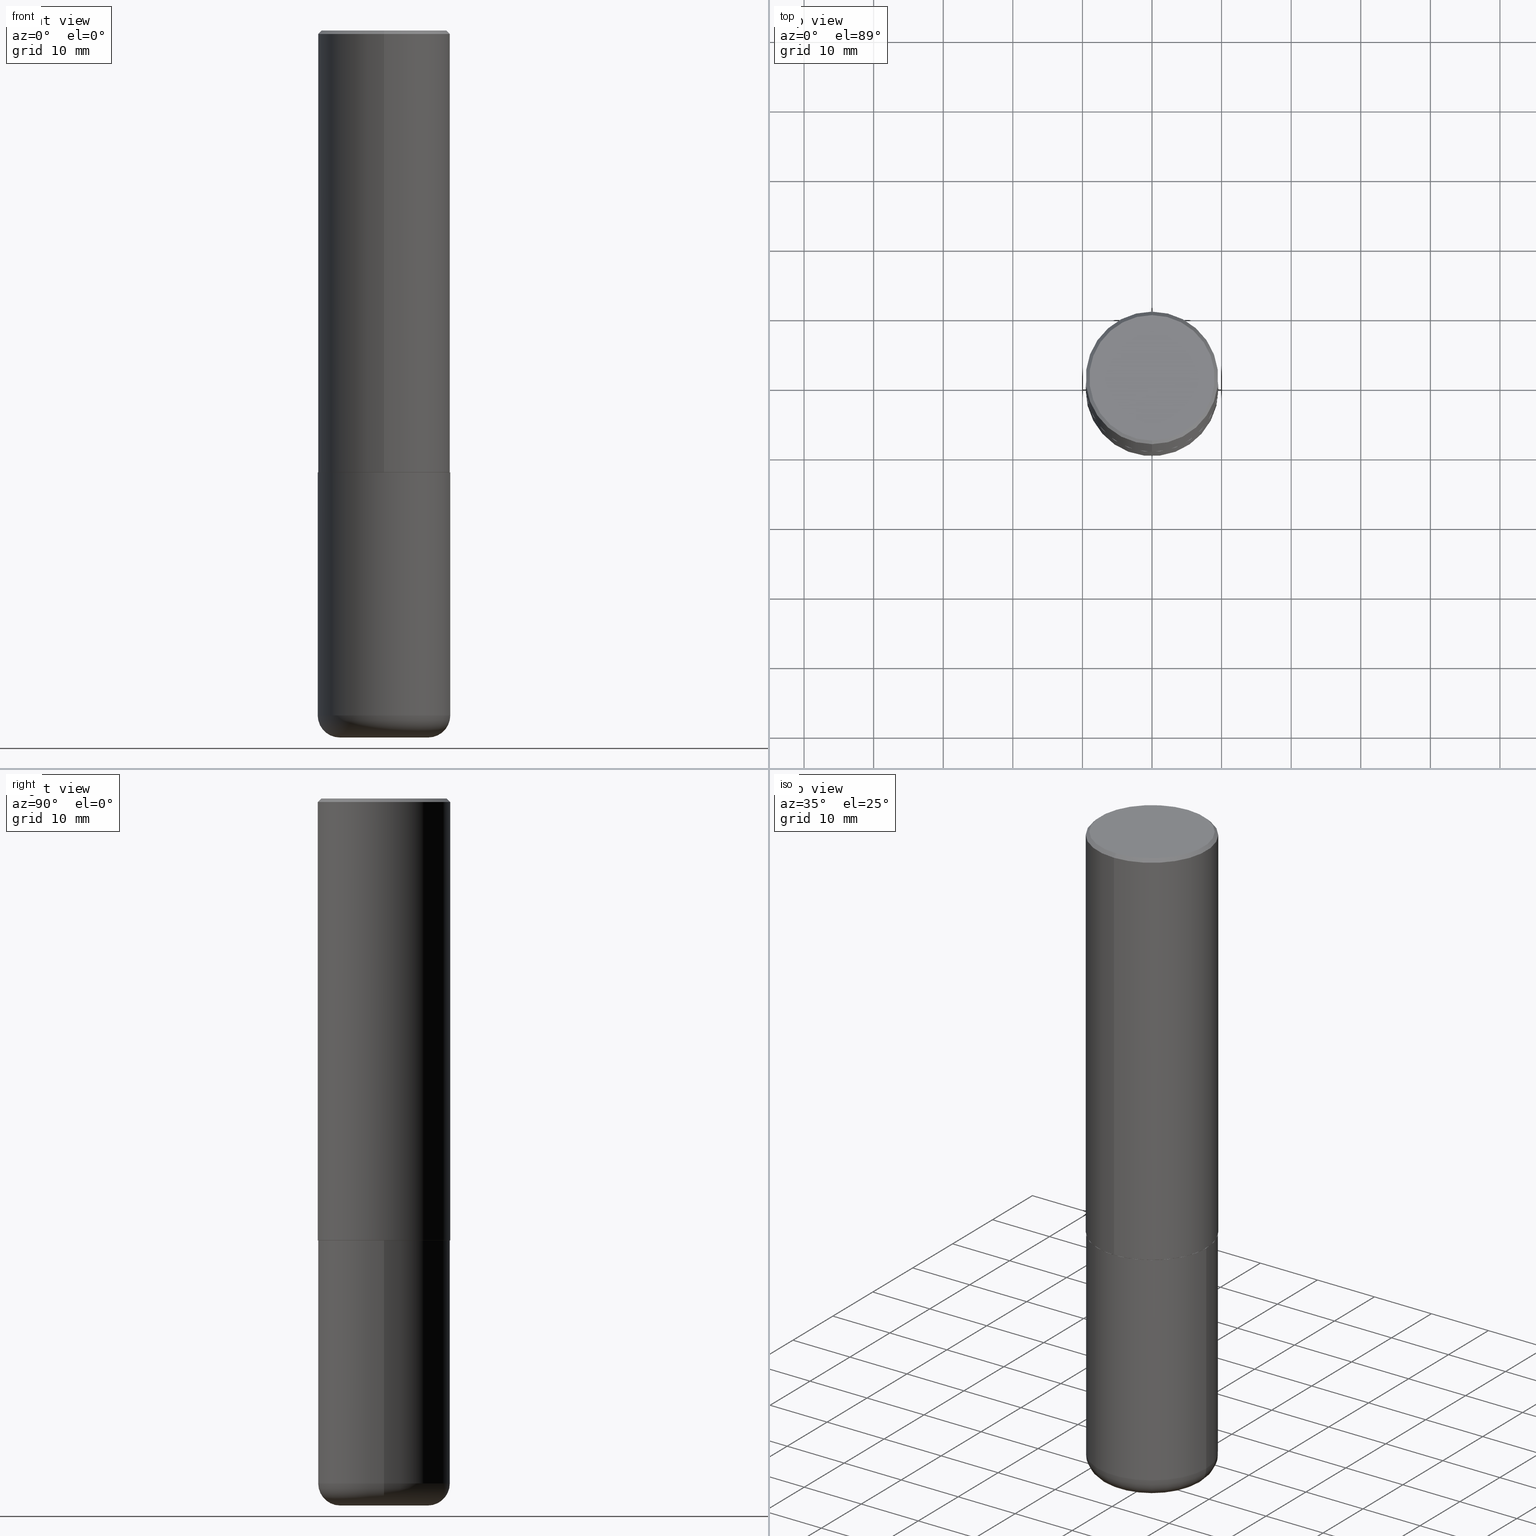
[diagram: canonical four-view strip — front | top / right | iso, engineering-drawing reading convention]
A machine part, canonical four-view strip (front | top / right | iso — engineering-drawing reading convention). The complete STEP part file that produces these views, byte-faithful:
ISO-10303-21;
HEADER;
FILE_DESCRIPTION (( 'STEP AP203' ),
    '1' );
FILE_NAME ('36715.STEP',
    '2024-03-01T17:30:03',
    ( '' ),
    ( '' ),
    'SwSTEP 2.0',
    'SolidWorks 2023',
    '' );
FILE_SCHEMA (( 'CONFIG_CONTROL_DESIGN' ));
ENDSEC;

DATA;
#1 = AXIS2_PLACEMENT_3D ( 'NONE', #44, #309, #139 ) ;
#2 = AXIS2_PLACEMENT_3D ( 'NONE', #43, #207, #336 ) ;
#3 = PERSON_AND_ORGANIZATION ( #70, #125 ) ;
#4 = ORIENTED_EDGE ( 'NONE', *, *, #22, .T. ) ;
#5 = ADVANCED_FACE ( 'NONE', ( #363 ), #9, .F. ) ;
#6 = CIRCLE ( 'NONE', #286, 0.3750000000000000555 ) ;
#7 = DIRECTION ( 'NONE',  ( -1.000000000000000000, 6.982962677686265922E-15, -4.876176775795935793E-29 ) ) ;
#8 = ORIENTED_EDGE ( 'NONE', *, *, #229, .T. ) ;
#9 = PLANE ( 'NONE',  #380 ) ;
#10 = CIRCLE ( 'NONE', #314, 0.2500000000000000555 ) ;
#11 = LOCAL_TIME ( 12, 30, 3.000000000000000000, #126 ) ;
#12 = CARTESIAN_POINT ( 'NONE',  ( 2.664535259100376486E-15, 0.3750000000000001665, -1.309801855808293473E-15 ) ) ;
#13 = DIRECTION ( 'NONE',  ( -2.444544534276841438E-29, 3.492804948822114088E-15, 1.000000000000000000 ) ) ;
#14 =( LENGTH_UNIT ( ) NAMED_UNIT ( * ) SI_UNIT ( $, .METRE. ) );
#15 = DIRECTION ( 'NONE',  ( 1.000000000000000000, -6.982962677686265922E-15, 4.876176775795935793E-29 ) ) ;
#16 =( NAMED_UNIT ( * ) SI_UNIT ( $, .STERADIAN. ) SOLID_ANGLE_UNIT ( ) );
#17 = LINE ( 'NONE', #276, #250 ) ;
#18 = LOCAL_TIME ( 12, 30, 3.000000000000000000, #258 ) ;
#19 = DIRECTION ( 'NONE',  ( -6.982962677686266711E-15, -1.000000000000000000, 3.492804948822114482E-15 ) ) ;
#20 = ADVANCED_FACE ( 'NONE', ( #72 ), #410, .T. ) ;
#21 = DIRECTION ( 'NONE',  ( 1.000000000000000000, -6.982962677686269077E-15, 0.000000000000000000 ) ) ;
#22 = EDGE_CURVE ( 'NONE', #69, #24, #367, .T. ) ;
#23 = CALENDAR_DATE ( 2024, 1, 3 ) ;
#24 = VERTEX_POINT ( 'NONE', #239 ) ;
#25 = AXIS2_PLACEMENT_3D ( 'NONE', #241, #337, #377 ) ;
#26 = CC_DESIGN_PERSON_AND_ORGANIZATION_ASSIGNMENT ( #317, #96, ( #164 ) ) ;
#27 = AXIS2_PLACEMENT_3D ( 'NONE', #382, #353, #414 ) ;
#28 = PERSON_AND_ORGANIZATION ( #70, #125 ) ;
#29 = AXIS2_PLACEMENT_3D ( 'NONE', #327, #360, #37 ) ;
#30 = CARTESIAN_POINT ( 'NONE',  ( -2.572686749164323547E-15, -0.3750000000000001110, -0.01999999999999877570 ) ) ;
#31 = ORIENTED_EDGE ( 'NONE', *, *, #220, .T. ) ;
#32 = DIRECTION ( 'NONE',  ( 1.000000000000000000, -6.982962677686265922E-15, 0.000000000000000000 ) ) ;
#33 = EDGE_LOOP ( 'NONE', ( #131, #293, #194, #222 ) ) ;
#34 = ADVANCED_FACE ( 'NONE', ( #394 ), #52, .T. ) ;
#35 = ORIENTED_EDGE ( 'NONE', *, *, #245, .T. ) ;
#36 = APPROVAL ( #179, 'UNSPECIFIED' ) ;
#37 = DIRECTION ( 'NONE',  ( -6.982962677686266711E-15, -1.000000000000000000, 3.492804948822114482E-15 ) ) ;
#38 = VECTOR ( 'NONE', #128, 39.37007874015748143 ) ;
#39 = EDGE_LOOP ( 'NONE', ( #221, #161, #237, #151 ) ) ;
#40 = LOCAL_TIME ( 12, 30, 3.000000000000000000, #162 ) ;
#41 = ORIENTED_EDGE ( 'NONE', *, *, #401, .T. ) ;
#42 = VERTEX_POINT ( 'NONE', #366 ) ;
#43 = CARTESIAN_POINT ( 'NONE',  ( 9.476191623967404313E-29, -1.352949018801718908E-14, -3.875000000000000000 ) ) ;
#44 = CARTESIAN_POINT ( 'NONE',  ( 0.2500000000000000555, -1.527523085743875734E-14, -3.875000000000000000 ) ) ;
#45 = AXIS2_PLACEMENT_3D ( 'NONE', #122, #311, #145 ) ;
#46 = AXIS2_PLACEMENT_3D ( 'NONE', #307, #270, #84 ) ;
#47 = DIRECTION ( 'NONE',  ( -2.444544534276841438E-29, 3.492804948822114088E-15, 1.000000000000000000 ) ) ;
#48 = DIRECTION ( 'NONE',  ( 7.105427357601001859E-15, 1.000000000000000000, -3.491481338843145583E-15 ) ) ;
#49 = FACE_OUTER_BOUND ( 'NONE', #326, .T. ) ;
#50 = CYLINDRICAL_SURFACE ( 'NONE', #368, 0.3750000000000001110 ) ;
#51 = CYLINDRICAL_SURFACE ( 'NONE', #299, 0.3750000000000001665 ) ;
#52 = CONICAL_SURFACE ( 'NONE', #329, 0.3750000000000000555, 0.7853981633974472798 ) ;
#53 = VECTOR ( 'NONE', #400, 39.37007874015748143 ) ;
#54 = CARTESIAN_POINT ( 'NONE',  ( 6.108916791157826464E-29, -8.728519567106462304E-15, -2.498999999999999666 ) ) ;
#55 = DIRECTION ( 'NONE',  ( -6.982962677686265922E-15, -1.000000000000000000, 3.494488891895536035E-15 ) ) ;
#56 = EDGE_CURVE ( 'NONE', #58, #130, #267, .T. ) ;
#57 = DATE_AND_TIME ( #383, #11 ) ;
#58 = VERTEX_POINT ( 'NONE', #208 ) ;
#59 = AXIS2_PLACEMENT_3D ( 'NONE', #362, #200, #259 ) ;
#60 = APPROVAL_STATUS ( 'not_yet_approved' ) ;
#61 = ORIENTED_EDGE ( 'NONE', *, *, #381, .T. ) ;
#62 = PERSON_AND_ORGANIZATION_ROLE ( 'design_supplier' ) ;
#63 = ADVANCED_FACE ( 'NONE', ( #49 ), #115, .T. ) ;
#64 = DATE_AND_TIME ( #386, #225 ) ;
#65 = CARTESIAN_POINT ( 'NONE',  ( 9.476191623967404313E-29, -1.352949018801718908E-14, -3.875000000000000000 ) ) ;
#66 = VERTEX_POINT ( 'NONE', #113 ) ;
#67 = MANIFOLD_SOLID_BREP ( 'Body-Move/Copy2[2]', #254 ) ;
#68 = MANIFOLD_SOLID_BREP ( 'Body-Move/Copy2[1]', #156 ) ;
#69 = VERTEX_POINT ( 'NONE', #302 ) ;
#70 = PERSON ( 'UNSPECIFIED', 'UNSPECIFIED', 'UNSPECIFIED', ('UNSPECIFIED'), ('UNSPECIFIED'), ('UNSPECIFIED') ) ;
#71 = DIRECTION ( 'NONE',  ( -6.982962677686266711E-15, -1.000000000000000000, 2.913971193241878794E-15 ) ) ;
#72 = FACE_OUTER_BOUND ( 'NONE', #163, .T. ) ;
#73 = AXIS2_PLACEMENT_3D ( 'NONE', #184, #48, #176 ) ;
#74 = CARTESIAN_POINT ( 'NONE',  ( 4.889089068553703440E-31, -6.985609897644257463E-17, -0.02000000000000008715 ) ) ;
#75 = CC_DESIGN_PERSON_AND_ORGANIZATION_ASSIGNMENT ( #94, #226, ( #101 ) ) ;
#76 = ORIENTED_EDGE ( 'NONE', *, *, #22, .F. ) ;
#77 = DIRECTION ( 'NONE',  ( 1.000000000000000000, -6.982962677686264344E-15, 0.000000000000000000 ) ) ;
#78 = LINE ( 'NONE', #114, #321 ) ;
#79 = LINE ( 'NONE', #178, #202 ) ;
#80 = AXIS2_PLACEMENT_3D ( 'NONE', #54, #180, #140 ) ;
#81 = DIRECTION ( 'NONE',  ( -2.444544534276841438E-29, 3.492804948822114088E-15, 1.000000000000000000 ) ) ;
#82 = CARTESIAN_POINT ( 'NONE',  ( 9.781875224740546387E-29, -1.396592535537258233E-14, -4.000000000000000000 ) ) ;
#83 = CC_DESIGN_DATE_AND_TIME_ASSIGNMENT ( #389, #312, ( #164 ) ) ;
#84 = DIRECTION ( 'NONE',  ( 1.000000000000000000, -6.982962677686265922E-15, 0.000000000000000000 ) ) ;
#85 = CARTESIAN_POINT ( 'NONE',  ( 2.618611004132350411E-15, 0.3749999999999999445, -0.02000000000000139513 ) ) ;
#86 = EDGE_CURVE ( 'NONE', #24, #69, #88, .T. ) ;
#87 = DIRECTION ( 'NONE',  ( 5.024295867789263036E-15, 0.7071067811867189912, 0.7071067811863760433 ) ) ;
#88 = CIRCLE ( 'NONE', #219, 0.3750000000000000555 ) ;
#89 = CIRCLE ( 'NONE', #46, 0.3750000000000001110 ) ;
#90 = ADVANCED_BREP_SHAPE_REPRESENTATION ( '36715', ( #68, #67, #27 ), #157 ) ;
#91 = ORIENTED_EDGE ( 'NONE', *, *, #263, .F. ) ;
#92 = APPLICATION_CONTEXT ( 'configuration controlled 3d designs of mechanical parts and assemblies' ) ;
#93 = VERTEX_POINT ( 'NONE', #350 ) ;
#94 = PERSON_AND_ORGANIZATION ( #70, #125 ) ;
#95 = VERTEX_POINT ( 'NONE', #248 ) ;
#96 = PERSON_AND_ORGANIZATION_ROLE ( 'classification_officer' ) ;
#97 = DIRECTION ( 'NONE',  ( 4.937700262164542520E-15, 0.7071067811865443531, -0.7071067811865506814 ) ) ;
#98 = ORIENTED_EDGE ( 'NONE', *, *, #401, .F. ) ;
#99 = SHAPE_DEFINITION_REPRESENTATION ( #364, #90 ) ;
#100 = ADVANCED_FACE ( 'NONE', ( #404 ), #181, .F. ) ;
#101 = PRODUCT_DEFINITION_FORMATION_WITH_SPECIFIED_SOURCE ( 'ANY', '', #204, .NOT_KNOWN. ) ;
#102 = ORIENTED_EDGE ( 'NONE', *, *, #412, .F. ) ;
#103 = VERTEX_POINT ( 'NONE', #273 ) ;
#104 = DIRECTION ( 'NONE',  ( 2.444544534276841438E-29, -3.492804948822114088E-15, -1.000000000000000000 ) ) ;
#105 = CALENDAR_DATE ( 2024, 1, 3 ) ;
#106 = CARTESIAN_POINT ( 'NONE',  ( 9.476191623967404313E-29, -1.352949018801718908E-14, -3.875000000000000000 ) ) ;
#107 = CIRCLE ( 'NONE', #1, 0.1250000000000000000 ) ;
#108 = ORIENTED_EDGE ( 'NONE', *, *, #227, .T. ) ;
#109 = APPROVAL_PERSON_ORGANIZATION ( #28, #305, #287 ) ;
#110 = DIRECTION ( 'NONE',  ( 2.438088387897960049E-29, -3.491481338843145188E-15, -1.000000000000000000 ) ) ;
#111 = DIRECTION ( 'NONE',  ( -2.445468806185136597E-29, 3.491481338843145583E-15, 1.000000000000000000 ) ) ;
#112 = CARTESIAN_POINT ( 'NONE',  ( 2.660982545421636724E-15, 0.3739999999999912839, -2.500000000000000444 ) ) ;
#113 = CARTESIAN_POINT ( 'NONE',  ( 0.2500000000000000555, -1.571166602479415059E-14, -4.000000000000000000 ) ) ;
#114 = CARTESIAN_POINT ( 'NONE',  ( -0.3750000000000001110, 2.664535259100376486E-15, -1.844600658845590159E-29 ) ) ;
#115 = CYLINDRICAL_SURFACE ( 'NONE', #387, 0.3750000000000001110 ) ;
#116 = CIRCLE ( 'NONE', #354, 0.3739999999999999991 ) ;
#117 = CIRCLE ( 'NONE', #348, 0.3750000000000001110 ) ;
#118 = PRODUCT_DEFINITION ( 'UNKNOWN', '', #101, #223 ) ;
#119 = FACE_OUTER_BOUND ( 'NONE', #33, .T. ) ;
#120 = LINE ( 'NONE', #85, #375 ) ;
#121 = APPLICATION_PROTOCOL_DEFINITION ( 'international standard', 'config_control_design', 1994, #346 ) ;
#122 = CARTESIAN_POINT ( 'NONE',  ( 6.111361335692102474E-29, -8.732012372055284037E-15, -2.499999999999999556 ) ) ;
#123 = DIRECTION ( 'NONE',  ( -6.982962677686265922E-15, -1.000000000000000000, 3.492804948822114482E-15 ) ) ;
#124 = CIRCLE ( 'NONE', #59, 0.3739999999999999991 ) ;
#125 = ORGANIZATION ( 'UNSPECIFIED', 'UNSPECIFIED', '' ) ;
#126 = COORDINATED_UNIVERSAL_TIME_OFFSET ( 5, 0, .BEHIND. ) ;
#127 = ORIENTED_EDGE ( 'NONE', *, *, #369, .T. ) ;
#128 = DIRECTION ( 'NONE',  ( -4.851104656540958753E-15, -0.7071067811865492381, -0.7071067811865457964 ) ) ;
#129 = EDGE_CURVE ( 'NONE', #66, #285, #107, .T. ) ;
#130 = VERTEX_POINT ( 'NONE', #409 ) ;
#131 = ORIENTED_EDGE ( 'NONE', *, *, #245, .F. ) ;
#132 = VERTEX_POINT ( 'NONE', #345 ) ;
#133 = CARTESIAN_POINT ( 'NONE',  ( 4.889089068553703440E-31, -6.985609897644257463E-17, -0.02000000000000008715 ) ) ;
#134 = CIRCLE ( 'NONE', #295, 0.2500000000000000555 ) ;
#135 = CARTESIAN_POINT ( 'NONE',  ( 6.113672015462840371E-29, -8.728703347107863365E-15, -2.499999999999999556 ) ) ;
#136 = CARTESIAN_POINT ( 'NONE',  ( -2.611628041454602471E-15, -0.3740000000000087699, -2.499999999999998668 ) ) ;
#137 = DIRECTION ( 'NONE',  ( -6.982962677686266711E-15, -1.000000000000000000, 3.492804948822114482E-15 ) ) ;
#138 = CARTESIAN_POINT ( 'NONE',  ( 6.111361335692102474E-29, -8.732012372055284037E-15, -2.499999999999999556 ) ) ;
#139 = DIRECTION ( 'NONE',  ( 1.000000000000000000, -6.982962677686262766E-15, 0.000000000000000000 ) ) ;
#140 = DIRECTION ( 'NONE',  ( -6.982962677686266711E-15, -1.000000000000000000, 2.913971193241878794E-15 ) ) ;
#141 = LINE ( 'NONE', #378, #397 ) ;
#142 = CC_DESIGN_APPROVAL ( #305, ( #164 ) ) ;
#143 = EDGE_CURVE ( 'NONE', #413, #93, #141, .T. ) ;
#144 = DIRECTION ( 'NONE',  ( -2.444544534276841158E-29, 3.492804948822114482E-15, 1.000000000000000000 ) ) ;
#145 = DIRECTION ( 'NONE',  ( -6.982962677686266711E-15, -1.000000000000000000, 2.921762560068730595E-15 ) ) ;
#146 = CC_DESIGN_PERSON_AND_ORGANIZATION_ASSIGNMENT ( #355, #316, ( #204 ) ) ;
#147 = DIRECTION ( 'NONE',  ( -2.445468806185136597E-29, 3.491481338843145583E-15, 1.000000000000000000 ) ) ;
#148 = ORIENTED_EDGE ( 'NONE', *, *, #256, .T. ) ;
#149 = AXIS2_PLACEMENT_3D ( 'NONE', #106, #236, #205 ) ;
#150 = APPROVAL_DATE_TIME ( #64, #395 ) ;
#151 = ORIENTED_EDGE ( 'NONE', *, *, #56, .F. ) ;
#152 = EDGE_CURVE ( 'NONE', #415, #130, #79, .T. ) ;
#153 = EDGE_LOOP ( 'NONE', ( #288, #127, #291, #281 ) ) ;
#154 = APPROVAL_ROLE ( '' ) ;
#155 = ORIENTED_EDGE ( 'NONE', *, *, #325, .T. ) ;
#156 = CLOSED_SHELL ( 'NONE', ( #63, #284, #5, #385, #365, #331 ) ) ;
#157 =( GEOMETRIC_REPRESENTATION_CONTEXT ( 3 ) GLOBAL_UNCERTAINTY_ASSIGNED_CONTEXT ( ( #416 ) ) GLOBAL_UNIT_ASSIGNED_CONTEXT ( ( #212, #177, #16 ) ) REPRESENTATION_CONTEXT ( 'NONE', 'WORKASPACE' ) );
#158 = APPROVAL_STATUS ( 'not_yet_approved' ) ;
#159 = PRODUCT_RELATED_PRODUCT_CATEGORY ( 'detail', '', ( #204 ) ) ;
#160 = FACE_OUTER_BOUND ( 'NONE', #297, .T. ) ;
#161 = ORIENTED_EDGE ( 'NONE', *, *, #412, .T. ) ;
#162 = COORDINATED_UNIVERSAL_TIME_OFFSET ( 5, 0, .BEHIND. ) ;
#163 = EDGE_LOOP ( 'NONE', ( #320, #313, #393, #98 ) ) ;
#164 = SECURITY_CLASSIFICATION ( '', '', #190 ) ;
#165 = DIRECTION ( 'NONE',  ( -2.444544534276841438E-29, 3.492804948822114088E-15, 1.000000000000000000 ) ) ;
#166 = CARTESIAN_POINT ( 'NONE',  ( 6.113672015462840371E-29, -8.728703347107863365E-15, -2.499999999999999556 ) ) ;
#167 = ORIENTED_EDGE ( 'NONE', *, *, #338, .T. ) ;
#168 = ORIENTED_EDGE ( 'NONE', *, *, #256, .F. ) ;
#169 = ADVANCED_FACE ( 'NONE', ( #244 ), #51, .T. ) ;
#170 = DIRECTION ( 'NONE',  ( 1.000000000000000000, -6.982962677686265922E-15, 4.876176775795935793E-29 ) ) ;
#171 = CIRCLE ( 'NONE', #182, 0.3550000000000001488 ) ;
#172 = PLANE ( 'NONE',  #224 ) ;
#173 = APPROVAL_PERSON_ORGANIZATION ( #257, #395, #154 ) ;
#174 = LINE ( 'NONE', #136, #53 ) ;
#175 = APPROVAL_DATE_TIME ( #408, #36 ) ;
#176 = DIRECTION ( 'NONE',  ( -1.000000000000000000, 7.105427357600996337E-15, 0.000000000000000000 ) ) ;
#177 =( NAMED_UNIT ( * ) PLANE_ANGLE_UNIT ( ) SI_UNIT ( $, .RADIAN. ) );
#178 = CARTESIAN_POINT ( 'NONE',  ( -2.618611004132351200E-15, -0.3750000000000001665, 1.309801855808293473E-15 ) ) ;
#179 = APPROVAL_STATUS ( 'not_yet_approved' ) ;
#180 = DIRECTION ( 'NONE',  ( -2.444544534276841438E-29, 3.492804948822114088E-15, 1.000000000000000000 ) ) ;
#181 = PLANE ( 'NONE',  #25 ) ;
#182 = AXIS2_PLACEMENT_3D ( 'NONE', #402, #13, #137 ) ;
#183 = CC_DESIGN_PERSON_AND_ORGANIZATION_ASSIGNMENT ( #356, #62, ( #101 ) ) ;
#184 = CARTESIAN_POINT ( 'NONE',  ( -0.2500000000000000555, -1.175313334861693862E-14, -3.875000000000000000 ) ) ;
#185 = DATE_TIME_ROLE ( 'creation_date' ) ;
#186 = AXIS2_PLACEMENT_3D ( 'NONE', #370, #165, #71 ) ;
#187 = ADVANCED_FACE ( 'NONE', ( #218 ), #339, .T. ) ;
#188 = ORIENTED_EDGE ( 'NONE', *, *, #381, .F. ) ;
#189 = APPROVAL_ROLE ( '' ) ;
#190 = SECURITY_CLASSIFICATION_LEVEL ( 'unclassified' ) ;
#191 = EDGE_LOOP ( 'NONE', ( #384, #155, #148, #261 ) ) ;
#192 = COORDINATED_UNIVERSAL_TIME_OFFSET ( 5, 0, .BEHIND. ) ;
#193 = CARTESIAN_POINT ( 'NONE',  ( -0.2500000000000000555, -1.152726172244457105E-14, -4.000000000000000000 ) ) ;
#194 = ORIENTED_EDGE ( 'NONE', *, *, #129, .T. ) ;
#195 = CIRCLE ( 'NONE', #73, 0.1250000000000000000 ) ;
#196 = CC_DESIGN_APPROVAL ( #36, ( #118 ) ) ;
#197 = FACE_OUTER_BOUND ( 'NONE', #318, .T. ) ;
#198 = ORIENTED_EDGE ( 'NONE', *, *, #263, .T. ) ;
#199 = ORIENTED_EDGE ( 'NONE', *, *, #338, .F. ) ;
#200 = DIRECTION ( 'NONE',  ( -2.444544534276841438E-29, 3.492804948822114088E-15, 1.000000000000000000 ) ) ;
#201 = CARTESIAN_POINT ( 'NONE',  ( 6.111361335692102474E-29, -8.732012372055284037E-15, -2.499999999999999556 ) ) ;
#202 = VECTOR ( 'NONE', #246, 39.37007874015748143 ) ;
#203 = DIRECTION ( 'NONE',  ( -6.982962677686265922E-15, -1.000000000000000000, 3.494488891895536035E-15 ) ) ;
#204 = PRODUCT ( '36715', '36715', '', ( #253 ) ) ;
#205 = DIRECTION ( 'NONE',  ( 1.000000000000000000, -6.982962677686267499E-15, 4.883557194083113462E-29 ) ) ;
#206 = ORIENTED_EDGE ( 'NONE', *, *, #247, .F. ) ;
#207 = DIRECTION ( 'NONE',  ( -2.445468806185136597E-29, 3.491481338843145583E-15, 1.000000000000000000 ) ) ;
#208 = CARTESIAN_POINT ( 'NONE',  ( 2.618611004132350411E-15, 0.3749999999999999445, -0.02000000000000139513 ) ) ;
#209 = DIMENSIONAL_EXPONENTS ( 1.000000000000000000, 0.000000000000000000, 0.000000000000000000, 0.000000000000000000, 0.000000000000000000, 0.000000000000000000, 0.000000000000000000 ) ;
#210 = AXIS2_PLACEMENT_3D ( 'NONE', #74, #372, #203 ) ;
#211 = FACE_OUTER_BOUND ( 'NONE', #396, .T. ) ;
#212 =( CONVERSION_BASED_UNIT ( 'INCH', #272 ) LENGTH_UNIT ( ) NAMED_UNIT ( #209 ) );
#213 = DIRECTION ( 'NONE',  ( -2.444544534276841438E-29, 3.492804948822114088E-15, 1.000000000000000000 ) ) ;
#214 = DIRECTION ( 'NONE',  ( 6.982962677686265922E-15, 1.000000000000000000, -3.494488891895536035E-15 ) ) ;
#215 = ADVANCED_FACE ( 'NONE', ( #211 ), #172, .F. ) ;
#216 = CARTESIAN_POINT ( 'NONE',  ( 0.000000000000000000, 0.000000000000000000, 0.000000000000000000 ) ) ;
#217 = DIRECTION ( 'NONE',  ( -6.982962677686266711E-15, -1.000000000000000000, 3.492804948822114482E-15 ) ) ;
#218 = FACE_OUTER_BOUND ( 'NONE', #232, .T. ) ;
#219 = AXIS2_PLACEMENT_3D ( 'NONE', #374, #278, #77 ) ;
#220 = EDGE_CURVE ( 'NONE', #132, #95, #171, .T. ) ;
#221 = ORIENTED_EDGE ( 'NONE', *, *, #369, .F. ) ;
#222 = ORIENTED_EDGE ( 'NONE', *, *, #325, .F. ) ;
#223 = DESIGN_CONTEXT ( 'detailed design', #92, 'design' ) ;
#224 = AXIS2_PLACEMENT_3D ( 'NONE', #376, #277, #123 ) ;
#225 = LOCAL_TIME ( 12, 30, 3.000000000000000000, #358 ) ;
#226 = PERSON_AND_ORGANIZATION_ROLE ( 'creator' ) ;
#227 = EDGE_CURVE ( 'NONE', #66, #264, #134, .T. ) ;
#228 = ORIENTED_EDGE ( 'NONE', *, *, #220, .F. ) ;
#229 = EDGE_CURVE ( 'NONE', #130, #58, #6, .T. ) ;
#230 = CYLINDRICAL_SURFACE ( 'NONE', #29, 0.3750000000000001665 ) ;
#231 = AXIS2_PLACEMENT_3D ( 'NONE', #268, #81, #217 ) ;
#232 = EDGE_LOOP ( 'NONE', ( #357, #388, #41, #102 ) ) ;
#233 = ORIENTED_EDGE ( 'NONE', *, *, #129, .F. ) ;
#234 = DIRECTION ( 'NONE',  ( 6.982962677686265922E-15, 1.000000000000000000, -3.494488891895536035E-15 ) ) ;
#235 = APPROVAL_PERSON_ORGANIZATION ( #359, #36, #189 ) ;
#236 = DIRECTION ( 'NONE',  ( -2.445468806185136597E-29, 3.491481338843145583E-15, 1.000000000000000000 ) ) ;
#237 = ORIENTED_EDGE ( 'NONE', *, *, #152, .T. ) ;
#238 = DIRECTION ( 'NONE',  ( 2.444544534276841438E-29, -3.492804948822114088E-15, -1.000000000000000000 ) ) ;
#239 = CARTESIAN_POINT ( 'NONE',  ( -0.3750000000000000555, -8.464561508462148949E-15, -2.499999999999999556 ) ) ;
#240 = CARTESIAN_POINT ( 'NONE',  ( -2.618611004132290852E-15, -0.3750000000000090483, -2.498999999999998778 ) ) ;
#241 = CARTESIAN_POINT ( 'NONE',  ( 2.478951750578625787E-15, 0.3550000000000001488, -1.333618090842793268E-15 ) ) ;
#242 = LINE ( 'NONE', #12, #300 ) ;
#243 = TOROIDAL_SURFACE ( 'NONE', #149, 0.2500000000000000555, 0.1249999999999999861 ) ;
#244 = FACE_OUTER_BOUND ( 'NONE', #39, .T. ) ;
#245 = EDGE_CURVE ( 'NONE', #264, #42, #195, .T. ) ;
#246 = DIRECTION ( 'NONE',  ( -2.444544534276841158E-29, 3.492804948822114482E-15, 1.000000000000000000 ) ) ;
#247 = EDGE_CURVE ( 'NONE', #264, #66, #10, .T. ) ;
#248 = CARTESIAN_POINT ( 'NONE',  ( 2.548781377355488296E-15, 0.3550000000000001488, -1.427290424853735415E-15 ) ) ;
#249 = CARTESIAN_POINT ( 'NONE',  ( 0.000000000000000000, 0.000000000000000000, 0.000000000000000000 ) ) ;
#250 = VECTOR ( 'NONE', #405, 39.37007874015748143 ) ;
#251 = LOCAL_TIME ( 12, 30, 3.000000000000000000, #192 ) ;
#252 = EDGE_LOOP ( 'NONE', ( #228, #371, #8, #91 ) ) ;
#253 = MECHANICAL_CONTEXT ( 'NONE', #346, 'mechanical' ) ;
#254 = CLOSED_SHELL ( 'NONE', ( #20, #322, #344, #34, #169, #187, #215, #100 ) ) ;
#255 = CC_DESIGN_SECURITY_CLASSIFICATION ( #164, ( #101 ) ) ;
#256 = EDGE_CURVE ( 'NONE', #285, #69, #17, .T. ) ;
#257 = PERSON_AND_ORGANIZATION ( #70, #125 ) ;
#258 = COORDINATED_UNIVERSAL_TIME_OFFSET ( 5, 0, .BEHIND. ) ;
#259 = DIRECTION ( 'NONE',  ( -6.982962677686266711E-15, -1.000000000000000000, 2.921762560068730595E-15 ) ) ;
#260 = ORIENTED_EDGE ( 'NONE', *, *, #417, .T. ) ;
#261 = ORIENTED_EDGE ( 'NONE', *, *, #86, .F. ) ;
#262 = EDGE_LOOP ( 'NONE', ( #167, #31 ) ) ;
#263 = EDGE_CURVE ( 'NONE', #95, #58, #120, .T. ) ;
#264 = VERTEX_POINT ( 'NONE', #193 ) ;
#265 = EDGE_CURVE ( 'NONE', #132, #130, #319, .T. ) ;
#266 = EDGE_LOOP ( 'NONE', ( #392, #199, #198, #324 ) ) ;
#267 = CIRCLE ( 'NONE', #210, 0.3750000000000000555 ) ;
#268 = CARTESIAN_POINT ( 'NONE',  ( 4.579723842388064751E-45, -6.543583836022733140E-31, -1.873446680218842448E-16 ) ) ;
#269 = DIRECTION ( 'NONE',  ( 1.000000000000000000, -6.982962677686264344E-15, 0.000000000000000000 ) ) ;
#270 = DIRECTION ( 'NONE',  ( -2.445468806185136597E-29, 3.491481338843145583E-15, 1.000000000000000000 ) ) ;
#271 = DIRECTION ( 'NONE',  ( -2.445468806185136597E-29, 3.491481338843145583E-15, 1.000000000000000000 ) ) ;
#272 = LENGTH_MEASURE_WITH_UNIT ( LENGTH_MEASURE( 0.02539999999999999897 ), #14 );
#273 = CARTESIAN_POINT ( 'NONE',  ( -2.611628041454602471E-15, -0.3740000000000087699, -2.499999999999998668 ) ) ;
#274 = AXIS2_PLACEMENT_3D ( 'NONE', #201, #328, #399 ) ;
#275 = CIRCLE ( 'NONE', #80, 0.3750000000000002776 ) ;
#276 = CARTESIAN_POINT ( 'NONE',  ( 0.3750000000000001110, -2.618611004132350411E-15, 1.828566290923476483E-29 ) ) ;
#277 = DIRECTION ( 'NONE',  ( -2.444544534276840877E-29, 3.492804948822114482E-15, 1.000000000000000000 ) ) ;
#278 = DIRECTION ( 'NONE',  ( -2.445468806185136597E-29, 3.491481338843145583E-15, 1.000000000000000000 ) ) ;
#279 = EDGE_CURVE ( 'NONE', #415, #93, #308, .T. ) ;
#280 = CIRCLE ( 'NONE', #231, 0.3550000000000001488 ) ;
#281 = ORIENTED_EDGE ( 'NONE', *, *, #152, .F. ) ;
#282 = ORIENTED_EDGE ( 'NONE', *, *, #341, .F. ) ;
#283 = APPROVAL_DATE_TIME ( #335, #305 ) ;
#284 = ADVANCED_FACE ( 'NONE', ( #197 ), #243, .T. ) ;
#285 = VERTEX_POINT ( 'NONE', #333 ) ;
#286 = AXIS2_PLACEMENT_3D ( 'NONE', #340, #213, #55 ) ;
#287 = APPROVAL_ROLE ( '' ) ;
#288 = ORIENTED_EDGE ( 'NONE', *, *, #279, .T. ) ;
#289 = EDGE_CURVE ( 'NONE', #413, #103, #124, .T. ) ;
#290 = PLANE ( 'NONE',  #294 ) ;
#291 = ORIENTED_EDGE ( 'NONE', *, *, #229, .F. ) ;
#292 = CC_DESIGN_DATE_AND_TIME_ASSIGNMENT ( #57, #185, ( #118 ) ) ;
#293 = ORIENTED_EDGE ( 'NONE', *, *, #247, .T. ) ;
#294 = AXIS2_PLACEMENT_3D ( 'NONE', #391, #110, #343 ) ;
#295 = AXIS2_PLACEMENT_3D ( 'NONE', #82, #271, #21 ) ;
#296 = DIRECTION ( 'NONE',  ( 2.438088387897960049E-29, -3.491481338843145188E-15, -1.000000000000000000 ) ) ;
#297 = EDGE_LOOP ( 'NONE', ( #352, #206 ) ) ;
#298 = ORIENTED_EDGE ( 'NONE', *, *, #289, .F. ) ;
#299 = AXIS2_PLACEMENT_3D ( 'NONE', #216, #407, #19 ) ;
#300 = VECTOR ( 'NONE', #144, 39.37007874015748143 ) ;
#301 = DIRECTION ( 'NONE',  ( -2.445468806185136597E-29, 3.491481338843145583E-15, 1.000000000000000000 ) ) ;
#302 = CARTESIAN_POINT ( 'NONE',  ( 0.3750000000000000555, -1.134731435124021180E-14, -2.499999999999999556 ) ) ;
#303 = FACE_OUTER_BOUND ( 'NONE', #191, .T. ) ;
#304 = CARTESIAN_POINT ( 'NONE',  ( 9.781875224740546387E-29, -1.396592535537258233E-14, -4.000000000000000000 ) ) ;
#305 = APPROVAL ( #158, 'UNSPECIFIED' ) ;
#306 = DIRECTION ( 'NONE',  ( 1.000000000000000000, -6.982962677686269077E-15, 0.000000000000000000 ) ) ;
#307 = CARTESIAN_POINT ( 'NONE',  ( 9.476191623967404313E-29, -1.352949018801718908E-14, -3.875000000000000000 ) ) ;
#308 = CIRCLE ( 'NONE', #186, 0.3750000000000002776 ) ;
#309 = DIRECTION ( 'NONE',  ( -6.982962677686266711E-15, -1.000000000000000000, 3.491481338843145583E-15 ) ) ;
#310 = CARTESIAN_POINT ( 'NONE',  ( 4.889089068553703440E-31, -6.985609897644257463E-17, -0.02000000000000008715 ) ) ;
#311 = DIRECTION ( 'NONE',  ( -2.444544534276841438E-29, 3.492804948822114088E-15, 1.000000000000000000 ) ) ;
#312 = DATE_TIME_ROLE ( 'classification_date' ) ;
#313 = ORIENTED_EDGE ( 'NONE', *, *, #143, .T. ) ;
#314 = AXIS2_PLACEMENT_3D ( 'NONE', #304, #342, #306 ) ;
#315 = CC_DESIGN_APPROVAL ( #395, ( #101 ) ) ;
#316 = PERSON_AND_ORGANIZATION_ROLE ( 'design_owner' ) ;
#317 = PERSON_AND_ORGANIZATION ( #70, #125 ) ;
#318 = EDGE_LOOP ( 'NONE', ( #108, #35, #188, #233 ) ) ;
#319 = LINE ( 'NONE', #30, #38 ) ;
#320 = ORIENTED_EDGE ( 'NONE', *, *, #341, .T. ) ;
#321 = VECTOR ( 'NONE', #403, 39.37007874015748143 ) ;
#322 = ADVANCED_FACE ( 'NONE', ( #390 ), #230, .T. ) ;
#323 = DIRECTION ( 'NONE',  ( -2.445468806185136597E-29, 3.491481338843145583E-15, 1.000000000000000000 ) ) ;
#324 = ORIENTED_EDGE ( 'NONE', *, *, #56, .T. ) ;
#325 = EDGE_CURVE ( 'NONE', #42, #285, #117, .T. ) ;
#326 = EDGE_LOOP ( 'NONE', ( #61, #260, #76, #168 ) ) ;
#327 = CARTESIAN_POINT ( 'NONE',  ( 0.000000000000000000, 0.000000000000000000, 0.000000000000000000 ) ) ;
#328 = DIRECTION ( 'NONE',  ( -2.444544534276841438E-29, 3.492804948822114088E-15, 1.000000000000000000 ) ) ;
#329 = AXIS2_PLACEMENT_3D ( 'NONE', #133, #104, #234 ) ;
#330 = AXIS2_PLACEMENT_3D ( 'NONE', #310, #238, #214 ) ;
#331 = ADVANCED_FACE ( 'NONE', ( #160 ), #290, .T. ) ;
#332 = EDGE_LOOP ( 'NONE', ( #4, #334 ) ) ;
#333 = CARTESIAN_POINT ( 'NONE',  ( 0.3750000000000001110, -1.614810119214954068E-14, -3.875000000000000000 ) ) ;
#334 = ORIENTED_EDGE ( 'NONE', *, *, #86, .T. ) ;
#335 = DATE_AND_TIME ( #23, #18 ) ;
#336 = DIRECTION ( 'NONE',  ( 1.000000000000000000, -6.982962677686267499E-15, 4.883557194083113462E-29 ) ) ;
#337 = DIRECTION ( 'NONE',  ( 2.444544534276840877E-29, -3.492804948822114482E-15, -1.000000000000000000 ) ) ;
#338 = EDGE_CURVE ( 'NONE', #95, #132, #280, .T. ) ;
#339 = CONICAL_SURFACE ( 'NONE', #45, 0.3739999999999999991, 0.7853981633976873100 ) ;
#340 = CARTESIAN_POINT ( 'NONE',  ( 4.889089068553703440E-31, -6.985609897644257463E-17, -0.02000000000000008715 ) ) ;
#341 = EDGE_CURVE ( 'NONE', #103, #413, #116, .T. ) ;
#342 = DIRECTION ( 'NONE',  ( -2.445468806185136597E-29, 3.491481338843145583E-15, 1.000000000000000000 ) ) ;
#343 = DIRECTION ( 'NONE',  ( -1.000000000000000000, 6.982962677686265922E-15, -4.876176775795935793E-29 ) ) ;
#344 = ADVANCED_FACE ( 'NONE', ( #398 ), #349, .T. ) ;
#345 = CARTESIAN_POINT ( 'NONE',  ( -2.504081769186609399E-15, -0.3550000000000001488, 1.052601088809966826E-15 ) ) ;
#346 = APPLICATION_CONTEXT ( 'configuration controlled 3d designs of mechanical parts and assemblies' ) ;
#347 = DIRECTION ( 'NONE',  ( -6.982962677686266711E-15, -1.000000000000000000, 2.921762560068730595E-15 ) ) ;
#348 = AXIS2_PLACEMENT_3D ( 'NONE', #65, #323, #32 ) ;
#349 = CONICAL_SURFACE ( 'NONE', #330, 0.3750000000000000555, 0.7853981633974472798 ) ;
#350 = CARTESIAN_POINT ( 'NONE',  ( 2.664535259100408040E-15, 0.3749999999999915623, -2.499000000000000998 ) ) ;
#351 = PERSON_AND_ORGANIZATION_ROLE ( 'creator' ) ;
#352 = ORIENTED_EDGE ( 'NONE', *, *, #227, .F. ) ;
#353 = DIRECTION ( 'NONE',  ( 0.000000000000000000, 0.000000000000000000, 1.000000000000000000 ) ) ;
#354 = AXIS2_PLACEMENT_3D ( 'NONE', #138, #47, #347 ) ;
#355 = PERSON_AND_ORGANIZATION ( #70, #125 ) ;
#356 = PERSON_AND_ORGANIZATION ( #70, #125 ) ;
#357 = ORIENTED_EDGE ( 'NONE', *, *, #143, .F. ) ;
#358 = COORDINATED_UNIVERSAL_TIME_OFFSET ( 5, 0, .BEHIND. ) ;
#359 = PERSON_AND_ORGANIZATION ( #70, #125 ) ;
#360 = DIRECTION ( 'NONE',  ( -2.444544534276841438E-29, 3.492804948822114088E-15, 1.000000000000000000 ) ) ;
#361 = AXIS2_PLACEMENT_3D ( 'NONE', #166, #111, #269 ) ;
#362 = CARTESIAN_POINT ( 'NONE',  ( 6.111361335692102474E-29, -8.732012372055284037E-15, -2.499999999999999556 ) ) ;
#363 = FACE_OUTER_BOUND ( 'NONE', #332, .T. ) ;
#364 = PRODUCT_DEFINITION_SHAPE ( 'NONE', 'NONE',  #118 ) ;
#365 = ADVANCED_FACE ( 'NONE', ( #119 ), #411, .T. ) ;
#366 = CARTESIAN_POINT ( 'NONE',  ( -0.3750000000000001110, -1.086495492891681181E-14, -3.875000000000000000 ) ) ;
#367 = CIRCLE ( 'NONE', #361, 0.3750000000000000555 ) ;
#368 = AXIS2_PLACEMENT_3D ( 'NONE', #373, #301, #170 ) ;
#369 = EDGE_CURVE ( 'NONE', #93, #58, #242, .T. ) ;
#370 = CARTESIAN_POINT ( 'NONE',  ( 6.108916791157826464E-29, -8.728519567106462304E-15, -2.498999999999999666 ) ) ;
#371 = ORIENTED_EDGE ( 'NONE', *, *, #265, .T. ) ;
#372 = DIRECTION ( 'NONE',  ( -2.444544534276841438E-29, 3.492804948822114088E-15, 1.000000000000000000 ) ) ;
#373 = CARTESIAN_POINT ( 'NONE',  ( 0.000000000000000000, 0.000000000000000000, 0.000000000000000000 ) ) ;
#374 = CARTESIAN_POINT ( 'NONE',  ( 6.113672015462840371E-29, -8.728703347107863365E-15, -2.499999999999999556 ) ) ;
#375 = VECTOR ( 'NONE', #97, 39.37007874015748143 ) ;
#376 = CARTESIAN_POINT ( 'NONE',  ( 6.111361335692102474E-29, -8.732012372055284037E-15, -2.499999999999999556 ) ) ;
#377 = DIRECTION ( 'NONE',  ( 6.982962677686265922E-15, 1.000000000000000000, -3.492804948822114482E-15 ) ) ;
#378 = CARTESIAN_POINT ( 'NONE',  ( 2.657429831742835431E-15, 0.3739999999999912839, -2.500000000000000444 ) ) ;
#379 = APPLICATION_PROTOCOL_DEFINITION ( 'international standard', 'config_control_design', 1994, #92 ) ;
#380 = AXIS2_PLACEMENT_3D ( 'NONE', #135, #296, #7 ) ;
#381 = EDGE_CURVE ( 'NONE', #285, #42, #89, .T. ) ;
#382 = CARTESIAN_POINT ( 'NONE',  ( 0.000000000000000000, 0.000000000000000000, 0.000000000000000000 ) ) ;
#383 = CALENDAR_DATE ( 2024, 1, 3 ) ;
#384 = ORIENTED_EDGE ( 'NONE', *, *, #417, .F. ) ;
#385 = ADVANCED_FACE ( 'NONE', ( #303 ), #50, .T. ) ;
#386 = CALENDAR_DATE ( 2024, 1, 3 ) ;
#387 = AXIS2_PLACEMENT_3D ( 'NONE', #249, #147, #15 ) ;
#388 = ORIENTED_EDGE ( 'NONE', *, *, #289, .T. ) ;
#389 = DATE_AND_TIME ( #418, #251 ) ;
#390 = FACE_OUTER_BOUND ( 'NONE', #153, .T. ) ;
#391 = CARTESIAN_POINT ( 'NONE',  ( 9.781875224740546387E-29, -1.396592535537258233E-14, -4.000000000000000000 ) ) ;
#392 = ORIENTED_EDGE ( 'NONE', *, *, #265, .F. ) ;
#393 = ORIENTED_EDGE ( 'NONE', *, *, #279, .F. ) ;
#394 = FACE_OUTER_BOUND ( 'NONE', #266, .T. ) ;
#395 = APPROVAL ( #60, 'UNSPECIFIED' ) ;
#396 = EDGE_LOOP ( 'NONE', ( #282, #298 ) ) ;
#397 = VECTOR ( 'NONE', #87, 39.37007874015748143 ) ;
#398 = FACE_OUTER_BOUND ( 'NONE', #252, .T. ) ;
#399 = DIRECTION ( 'NONE',  ( -6.982962677686266711E-15, -1.000000000000000000, 2.921762560068730595E-15 ) ) ;
#400 = DIRECTION ( 'NONE',  ( -4.937700262165728178E-15, -0.7071067811867141062, 0.7071067811863809283 ) ) ;
#401 = EDGE_CURVE ( 'NONE', #103, #415, #174, .T. ) ;
#402 = CARTESIAN_POINT ( 'NONE',  ( 4.579723842388064751E-45, -6.543583836022733140E-31, -1.873446680218842448E-16 ) ) ;
#403 = DIRECTION ( 'NONE',  ( -2.445468806185136877E-29, 3.491481338843145188E-15, 1.000000000000000000 ) ) ;
#404 = FACE_OUTER_BOUND ( 'NONE', #262, .T. ) ;
#405 = DIRECTION ( 'NONE',  ( -2.445468806185136877E-29, 3.491481338843145188E-15, 1.000000000000000000 ) ) ;
#406 = CC_DESIGN_PERSON_AND_ORGANIZATION_ASSIGNMENT ( #3, #351, ( #118 ) ) ;
#407 = DIRECTION ( 'NONE',  ( -2.444544534276841438E-29, 3.492804948822114088E-15, 1.000000000000000000 ) ) ;
#408 = DATE_AND_TIME ( #105, #40 ) ;
#409 = CARTESIAN_POINT ( 'NONE',  ( -2.572686749164323547E-15, -0.3750000000000001110, -0.01999999999999877570 ) ) ;
#410 = CONICAL_SURFACE ( 'NONE', #274, 0.3739999999999999991, 0.7853981633976873100 ) ;
#411 = TOROIDAL_SURFACE ( 'NONE', #2, 0.2500000000000000555, 0.1249999999999999861 ) ;
#412 = EDGE_CURVE ( 'NONE', #93, #415, #275, .T. ) ;
#413 = VERTEX_POINT ( 'NONE', #112 ) ;
#414 = DIRECTION ( 'NONE',  ( 1.000000000000000000, 0.000000000000000000, 0.000000000000000000 ) ) ;
#415 = VERTEX_POINT ( 'NONE', #240 ) ;
#416 = UNCERTAINTY_MEASURE_WITH_UNIT (LENGTH_MEASURE( 1.000000000000000082E-05 ), #212, 'distance_accuracy_value', 'NONE');
#417 = EDGE_CURVE ( 'NONE', #42, #24, #78, .T. ) ;
#418 = CALENDAR_DATE ( 2024, 1, 3 ) ;
ENDSEC;
END-ISO-10303-21;
